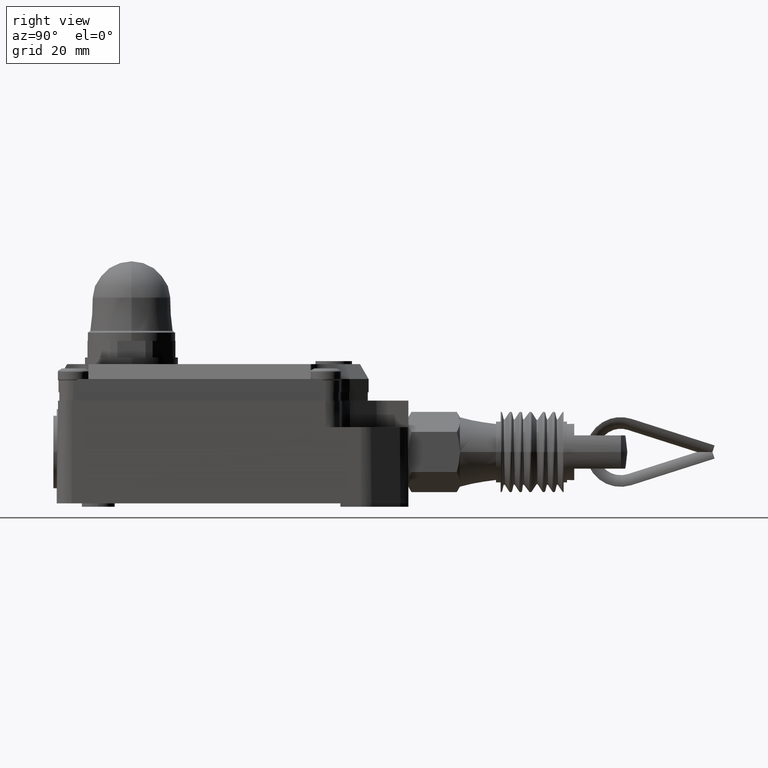
[diagram: clean part render]
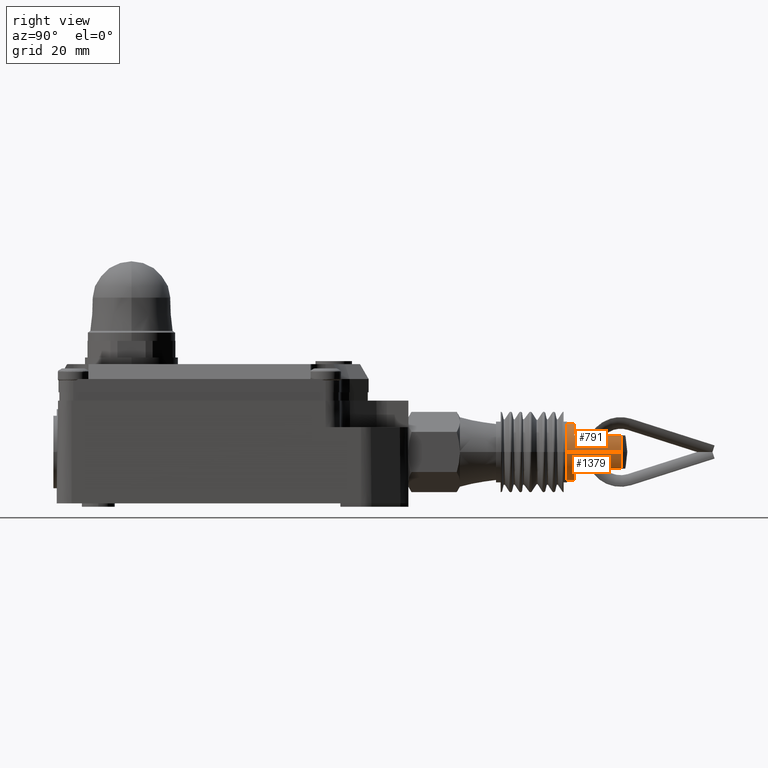
[diagram: same view with one multi-face feature highlighted, each face labeled with its STEP entity id]
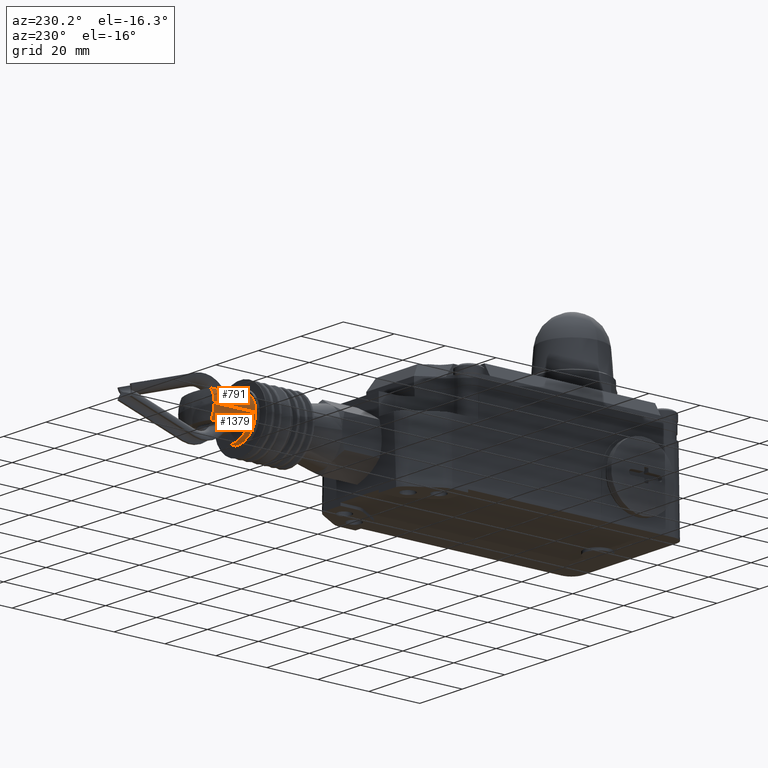
[diagram: same view with one multi-face feature highlighted, each face labeled with its STEP entity id]
A machine part, right view. The highlighted faces form ONE feature: a constant-radius fillet chain: 2 tangent blend faces with common blend radius 8.5 mm. The faces share edges in the B-rep.
A second angle (auxiliary view) of the same feature is appended — it is thin or edge-on in the first view.
Their STEP definitions:
[1] entity #1379 (Cylinder):
#1379=ADVANCED_FACE('',(#2954),#2955,.T.);
#2954=FACE_OUTER_BOUND('',#4731,.T.);
#2955=CYLINDRICAL_SURFACE('',#4732,8.5);
#4731=EDGE_LOOP('',(#8652,#8653,#8654,#8655,#8656,#8657,#8658,#8659));
#4732=AXIS2_PLACEMENT_3D('',#8660,#8661,#8662);
#8652=ORIENTED_EDGE('',*,*,#10828,.T.);
#8653=ORIENTED_EDGE('',*,*,#10820,.F.);
#8654=ORIENTED_EDGE('',*,*,#11867,.T.);
#8655=ORIENTED_EDGE('',*,*,#11864,.T.);
#8656=ORIENTED_EDGE('',*,*,#11868,.T.);
#8657=ORIENTED_EDGE('',*,*,#10818,.F.);
#8658=ORIENTED_EDGE('',*,*,#10830,.T.);
#8659=ORIENTED_EDGE('',*,*,#11816,.T.);
#8660=CARTESIAN_POINT('',(31.9104298117,152.2919334951,16.5));
#8661=DIRECTION('',(0.0,-1.0,0.0));
#8662=DIRECTION('',(-1.0,0.0,0.0));
#10818=EDGE_CURVE('',#12989,#12992,#12993,.T.);
#10820=EDGE_CURVE('',#12994,#12996,#12997,.T.);
#10828=EDGE_CURVE('',#13009,#12996,#13010,.T.);
#10830=EDGE_CURVE('',#12989,#13011,#13013,.T.);
#11816=EDGE_CURVE('',#13011,#13009,#14465,.T.);
#11864=EDGE_CURVE('',#14513,#14514,#14515,.T.);
#11867=EDGE_CURVE('',#12994,#14513,#14518,.T.);
#11868=EDGE_CURVE('',#14514,#12992,#14519,.T.);
#12989=VERTEX_POINT('',#16164);
#12992=VERTEX_POINT('',#16167);
#12993=CIRCLE('',#16168,8.5);
#12994=VERTEX_POINT('',#16169);
#12996=VERTEX_POINT('',#16171);
#12997=CIRCLE('',#16172,8.5);
#13009=VERTEX_POINT('',#16186);
#13010=LINE('',#16187,#16188);
#13011=VERTEX_POINT('',#16189);
#13013=LINE('',#16191,#16192);
#14465=CIRCLE('',#18247,8.5);
#14513=VERTEX_POINT('',#18295);
#14514=VERTEX_POINT('',#18296);
#14515=CIRCLE('',#18297,8.5);
#14518=LINE('',#18301,#18302);
#14519=LINE('',#18303,#18304);
#16164=CARTESIAN_POINT('',(40.4104298117,171.1438669902,16.5));
#16167=CARTESIAN_POINT('',(38.7842933541338,171.1438669902,11.5));
#16168=AXIS2_PLACEMENT_3D('',#20341,#20342,#20343);
#16169=CARTESIAN_POINT('',(25.0365662692662,171.1438669902,11.5));
#16171=CARTESIAN_POINT('',(23.4104298117,171.1438669902,16.5));
#16172=AXIS2_PLACEMENT_3D('',#20347,#20348,#20349);
#16186=CARTESIAN_POINT('',(23.4104298117,154.84,16.5));
#16187=CARTESIAN_POINT('',(23.4104298117,162.9919334951,16.5));
#16188=VECTOR('',#20361,1.0);
#16189=CARTESIAN_POINT('',(40.4104298117,154.84,16.5));
#16191=CARTESIAN_POINT('',(40.4104298117,162.9919334951,16.5));
#16192=VECTOR('',#20365,1.0);
#18247=AXIS2_PLACEMENT_3D('',#21698,#21699,#21700);
#18295=CARTESIAN_POINT('',(25.0365662692662,157.04,11.5));
#18296=CARTESIAN_POINT('',(38.7842933541338,157.04,11.5));
#18297=AXIS2_PLACEMENT_3D('',#21743,#21744,#21745);
#18301=CARTESIAN_POINT('',(25.0365662692662,164.0919334951,11.5));
#18302=VECTOR('',#21747,1.0);
#18303=CARTESIAN_POINT('',(38.7842933541338,164.0919334951,11.5));
#18304=VECTOR('',#21748,1.0);
#20341=CARTESIAN_POINT('',(31.9104298117,171.1438669902,16.5));
#20342=DIRECTION('',(0.0,1.0,0.0));
#20343=DIRECTION('',(-1.0,0.0,0.0));
#20347=CARTESIAN_POINT('',(31.9104298117,171.1438669902,16.5));
#20348=DIRECTION('',(0.0,1.0,0.0));
#20349=DIRECTION('',(-1.0,0.0,0.0));
#20361=DIRECTION('',(0.0,1.0,0.0));
#20365=DIRECTION('',(0.0,-1.0,0.0));
#21698=CARTESIAN_POINT('',(31.9104298117,154.84,16.5));
#21699=DIRECTION('',(0.0,1.0,0.0));
#21700=DIRECTION('',(-1.0,0.0,0.0));
#21743=CARTESIAN_POINT('',(31.9104298117,157.04,16.5));
#21744=DIRECTION('',(0.0,-1.0,0.0));
#21745=DIRECTION('',(-1.0,0.0,0.0));
#21747=DIRECTION('',(0.0,-1.0,0.0));
#21748=DIRECTION('',(0.0,1.0,0.0));
[2] entity #791 (Cylinder):
#791=ADVANCED_FACE('',(#2048),#2049,.T.);
#2048=FACE_OUTER_BOUND('',#3825,.T.);
#2049=CYLINDRICAL_SURFACE('',#3826,8.5);
#3825=EDGE_LOOP('',(#6018,#6019,#6020,#6021,#6022,#6023,#6024,#6025));
#3826=AXIS2_PLACEMENT_3D('',#6026,#6027,#6028);
#6018=ORIENTED_EDGE('',*,*,#10828,.F.);
#6019=ORIENTED_EDGE('',*,*,#10829,.T.);
#6020=ORIENTED_EDGE('',*,*,#10830,.F.);
#6021=ORIENTED_EDGE('',*,*,#10831,.F.);
#6022=ORIENTED_EDGE('',*,*,#10832,.T.);
#6023=ORIENTED_EDGE('',*,*,#10833,.T.);
#6024=ORIENTED_EDGE('',*,*,#10834,.T.);
#6025=ORIENTED_EDGE('',*,*,#10835,.F.);
#6026=CARTESIAN_POINT('',(31.9104298117,152.2919334951,16.5));
#6027=DIRECTION('',(0.0,-1.0,0.0));
#6028=DIRECTION('',(-1.0,0.0,0.0));
#10828=EDGE_CURVE('',#13009,#12996,#13010,.T.);
#10829=EDGE_CURVE('',#13009,#13011,#13012,.T.);
#10830=EDGE_CURVE('',#12989,#13011,#13013,.T.);
#10831=EDGE_CURVE('',#13014,#12989,#13015,.T.);
#10832=EDGE_CURVE('',#13014,#13016,#13017,.T.);
#10833=EDGE_CURVE('',#13016,#13018,#13019,.T.);
#10834=EDGE_CURVE('',#13018,#13020,#13021,.T.);
#10835=EDGE_CURVE('',#12996,#13020,#13022,.T.);
#12989=VERTEX_POINT('',#16164);
#12996=VERTEX_POINT('',#16171);
#13009=VERTEX_POINT('',#16186);
#13010=LINE('',#16187,#16188);
#13011=VERTEX_POINT('',#16189);
#13012=CIRCLE('',#16190,8.5);
#13013=LINE('',#16191,#16192);
#13014=VERTEX_POINT('',#16193);
#13015=CIRCLE('',#16194,8.5);
#13016=VERTEX_POINT('',#16195);
#13017=LINE('',#16196,#16197);
#13018=VERTEX_POINT('',#16198);
#13019=CIRCLE('',#16199,8.5);
#13020=VERTEX_POINT('',#16200);
#13021=LINE('',#16201,#16202);
#13022=CIRCLE('',#16203,8.5);
#16164=CARTESIAN_POINT('',(40.4104298117,171.1438669902,16.5));
#16171=CARTESIAN_POINT('',(23.4104298117,171.1438669902,16.5));
#16186=CARTESIAN_POINT('',(23.4104298117,154.84,16.5));
#16187=CARTESIAN_POINT('',(23.4104298117,162.9919334951,16.5));
#16188=VECTOR('',#20361,1.0);
#16189=CARTESIAN_POINT('',(40.4104298117,154.84,16.5));
#16190=AXIS2_PLACEMENT_3D('',#20362,#20363,#20364);
#16191=CARTESIAN_POINT('',(40.4104298117,162.9919334951,16.5));
#16192=VECTOR('',#20365,1.0);
#16193=CARTESIAN_POINT('',(38.7842933541338,171.1438669902,21.5));
#16194=AXIS2_PLACEMENT_3D('',#20366,#20367,#20368);
#16195=CARTESIAN_POINT('',(38.7842933541338,157.04,21.5));
#16196=CARTESIAN_POINT('',(38.7842933541338,164.0919334951,21.5));
#16197=VECTOR('',#20369,1.0);
#16198=CARTESIAN_POINT('',(25.0365662692662,157.04,21.5));
#16199=AXIS2_PLACEMENT_3D('',#20370,#20371,#20372);
#16200=CARTESIAN_POINT('',(25.0365662692662,171.1438669902,21.5));
#16201=CARTESIAN_POINT('',(25.0365662692662,164.0919334951,21.5));
#16202=VECTOR('',#20373,1.0);
#16203=AXIS2_PLACEMENT_3D('',#20374,#20375,#20376);
#20361=DIRECTION('',(0.0,1.0,0.0));
#20362=CARTESIAN_POINT('',(31.9104298117,154.84,16.5));
#20363=DIRECTION('',(0.0,1.0,0.0));
#20364=DIRECTION('',(-1.0,0.0,0.0));
#20365=DIRECTION('',(0.0,-1.0,0.0));
#20366=CARTESIAN_POINT('',(31.9104298117,171.1438669902,16.5));
#20367=DIRECTION('',(0.0,1.0,0.0));
#20368=DIRECTION('',(-1.0,0.0,0.0));
#20369=DIRECTION('',(0.0,-1.0,0.0));
#20370=CARTESIAN_POINT('',(31.9104298117,157.04,16.5));
#20371=DIRECTION('',(0.0,-1.0,0.0));
#20372=DIRECTION('',(-1.0,0.0,0.0));
#20373=DIRECTION('',(0.0,1.0,0.0));
#20374=CARTESIAN_POINT('',(31.9104298117,171.1438669902,16.5));
#20375=DIRECTION('',(0.0,1.0,0.0));
#20376=DIRECTION('',(-1.0,0.0,0.0));